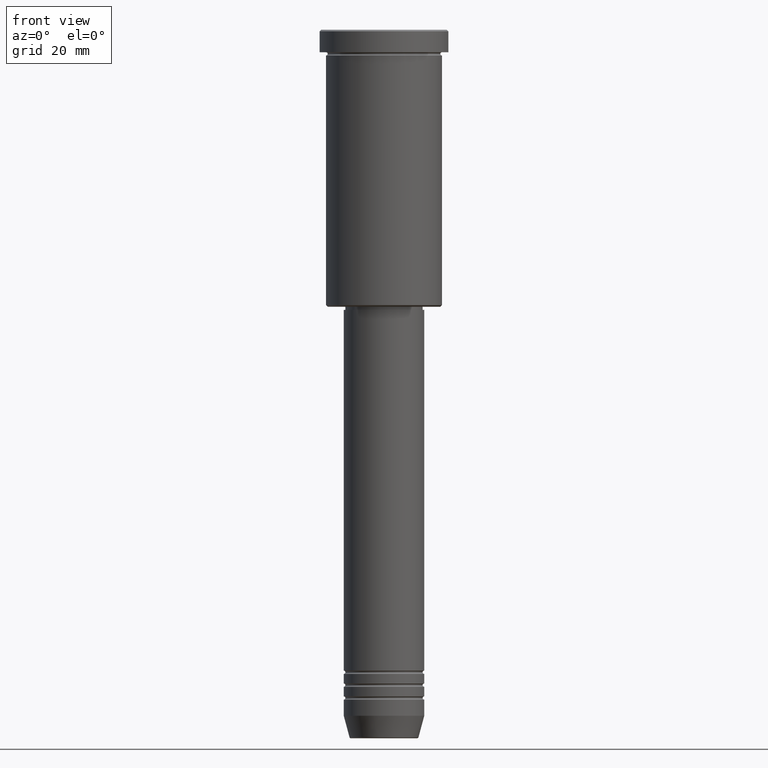
[diagram: clean part render]
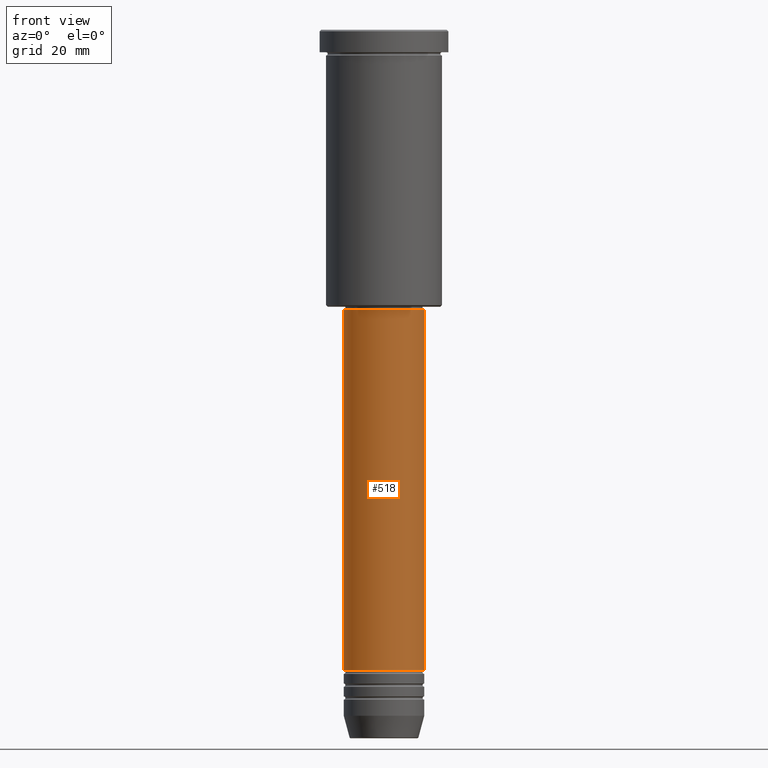
[diagram: same view with one face highlighted and labeled with its STEP entity id]
A machine part, front view. The second image highlights one B-rep face of the part: STEP entity #518.
In plain terms, the highlighted cylindrical surface (partial cylindrical patch) has radius 12.5 mm, axis along (-0, -0, 1).
Its self-contained STEP definition (entity closure, byte-faithful):
#2 = LINE ( 'NONE', #1109, #874 ) ;
#36 = AXIS2_PLACEMENT_3D ( 'NONE', #950, #757, #922 ) ;
#82 = CIRCLE ( 'NONE', #491, 12.50000000000000000 ) ;
#113 = DIRECTION ( 'NONE',  ( 1.000000000000000000, 0.000000000000000000, 0.000000000000000000 ) ) ;
#120 = CARTESIAN_POINT ( 'NONE',  ( 0.000000000000000000, 0.000000000000000000, -87.00000000000002842 ) ) ;
#126 = LINE ( 'NONE', #677, #620 ) ;
#143 = CARTESIAN_POINT ( 'NONE',  ( 0.000000000000000000, 0.000000000000000000, -198.9999999999999716 ) ) ;
#187 = CYLINDRICAL_SURFACE ( 'NONE', #36, 12.50000000000000000 ) ;
#227 = CARTESIAN_POINT ( 'NONE',  ( -12.50000000000000000, 1.530808498934191521E-15, -87.00000000000002842 ) ) ;
#241 = VERTEX_POINT ( 'NONE', #887 ) ;
#295 = CARTESIAN_POINT ( 'NONE',  ( -12.50000000000000000, 1.530808498934191521E-15, -198.9999999999999716 ) ) ;
#305 = EDGE_LOOP ( 'NONE', ( #1168, #347, #832, #570 ) ) ;
#320 = DIRECTION ( 'NONE',  ( 1.000000000000000000, 0.000000000000000000, 0.000000000000000000 ) ) ;
#338 = AXIS2_PLACEMENT_3D ( 'NONE', #120, #538, #113 ) ;
#347 = ORIENTED_EDGE ( 'NONE', *, *, #798, .T. ) ;
#426 = EDGE_CURVE ( 'NONE', #561, #241, #126, .T. ) ;
#475 = EDGE_CURVE ( 'NONE', #1096, #893, #2, .T. ) ;
#491 = AXIS2_PLACEMENT_3D ( 'NONE', #143, #507, #320 ) ;
#507 = DIRECTION ( 'NONE',  ( -0.000000000000000000, -0.000000000000000000, 1.000000000000000000 ) ) ;
#518 = ADVANCED_FACE ( 'NONE', ( #1029 ), #187, .T. ) ;
#533 = EDGE_CURVE ( 'NONE', #893, #241, #956, .T. ) ;
#538 = DIRECTION ( 'NONE',  ( -0.000000000000000000, -0.000000000000000000, 1.000000000000000000 ) ) ;
#561 = VERTEX_POINT ( 'NONE', #701 ) ;
#570 = ORIENTED_EDGE ( 'NONE', *, *, #533, .F. ) ;
#620 = VECTOR ( 'NONE', #1003, 1000.000000000000000 ) ;
#677 = CARTESIAN_POINT ( 'NONE',  ( 12.50000000000000000, 0.000000000000000000, 0.000000000000000000 ) ) ;
#701 = CARTESIAN_POINT ( 'NONE',  ( 12.50000000000000000, 0.000000000000000000, -198.9999999999999716 ) ) ;
#740 = DIRECTION ( 'NONE',  ( -0.000000000000000000, -0.000000000000000000, 1.000000000000000000 ) ) ;
#757 = DIRECTION ( 'NONE',  ( -0.000000000000000000, -0.000000000000000000, 1.000000000000000000 ) ) ;
#798 = EDGE_CURVE ( 'NONE', #1096, #561, #82, .T. ) ;
#832 = ORIENTED_EDGE ( 'NONE', *, *, #426, .T. ) ;
#874 = VECTOR ( 'NONE', #740, 1000.000000000000000 ) ;
#887 = CARTESIAN_POINT ( 'NONE',  ( 12.50000000000000000, 0.000000000000000000, -87.00000000000002842 ) ) ;
#893 = VERTEX_POINT ( 'NONE', #227 ) ;
#922 = DIRECTION ( 'NONE',  ( 1.000000000000000000, 0.000000000000000000, 0.000000000000000000 ) ) ;
#950 = CARTESIAN_POINT ( 'NONE',  ( 0.000000000000000000, 0.000000000000000000, 0.000000000000000000 ) ) ;
#956 = CIRCLE ( 'NONE', #338, 12.50000000000000000 ) ;
#1003 = DIRECTION ( 'NONE',  ( -0.000000000000000000, -0.000000000000000000, 1.000000000000000000 ) ) ;
#1029 = FACE_OUTER_BOUND ( 'NONE', #305, .T. ) ;
#1096 = VERTEX_POINT ( 'NONE', #295 ) ;
#1109 = CARTESIAN_POINT ( 'NONE',  ( -12.50000000000000000, 1.530808498934191521E-15, 0.000000000000000000 ) ) ;
#1168 = ORIENTED_EDGE ( 'NONE', *, *, #475, .F. ) ;